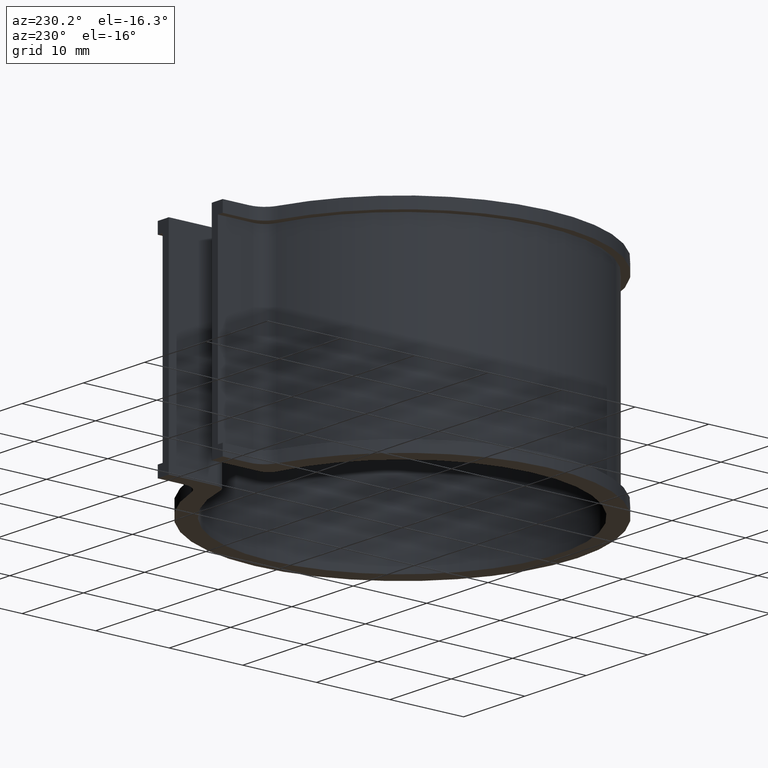
[diagram: clean part render]
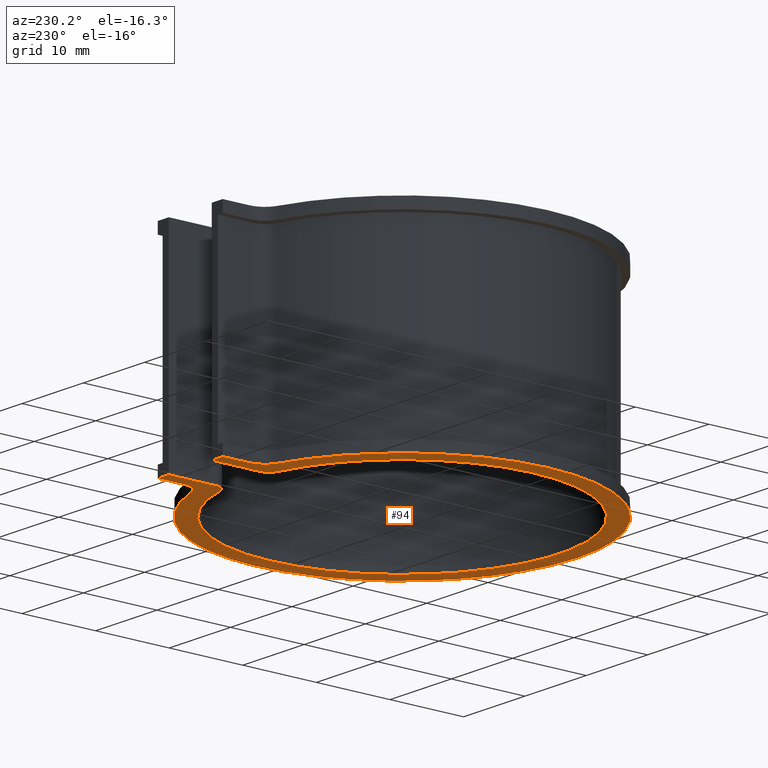
[diagram: same view with one face highlighted and labeled with its STEP entity id]
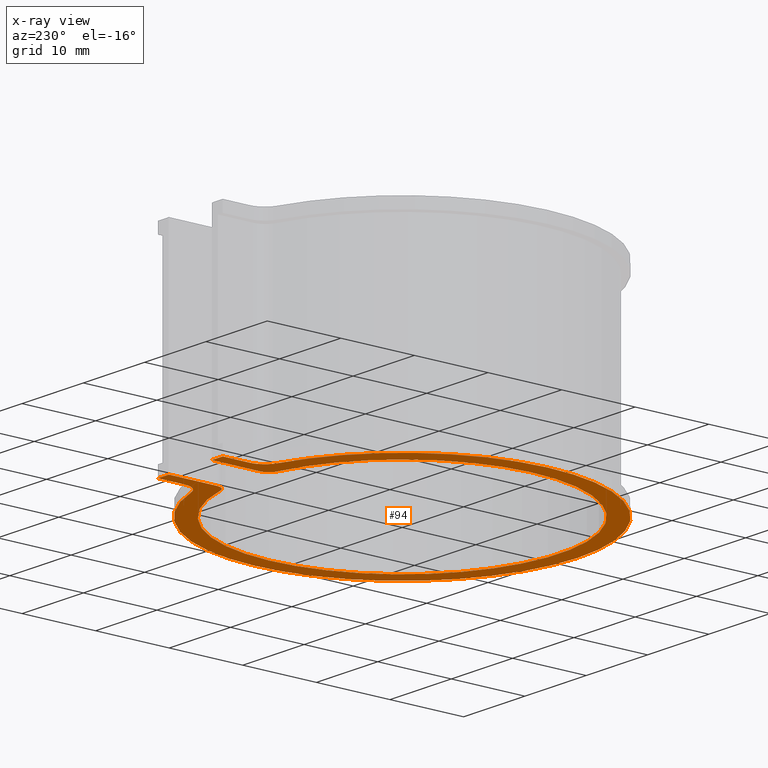
[diagram: x-ray of the same camera — body ghosted, the highlighted face saturated]
A machine part, auxiliary view. The second image highlights one B-rep face of the part: STEP entity #94.
The next image is the same camera in x-ray: the body ghosted, the highlighted face saturated — about 0% of this face is hidden behind the body in this view.
In plain terms, the highlighted planar face has unit normal (0, 0, 1).
Its self-contained STEP definition (entity closure, byte-faithful):
#94 = ADVANCED_FACE( '', ( #140 ), #141, .F. );
#140 = FACE_OUTER_BOUND( '', #192, .T. );
#141 = PLANE( '', #193 );
#192 = EDGE_LOOP( '', ( #367, #368, #369, #370, #371, #372, #373, #374, #375, #376, #377, #378 ) );
#193 = AXIS2_PLACEMENT_3D( '', #379, #380, #381 );
#367 = ORIENTED_EDGE( '', *, *, #493, .F. );
#368 = ORIENTED_EDGE( '', *, *, #484, .T. );
#369 = ORIENTED_EDGE( '', *, *, #428, .F. );
#370 = ORIENTED_EDGE( '', *, *, #494, .F. );
#371 = ORIENTED_EDGE( '', *, *, #495, .F. );
#372 = ORIENTED_EDGE( '', *, *, #474, .T. );
#373 = ORIENTED_EDGE( '', *, *, #496, .F. );
#374 = ORIENTED_EDGE( '', *, *, #469, .T. );
#375 = ORIENTED_EDGE( '', *, *, #497, .F. );
#376 = ORIENTED_EDGE( '', *, *, #437, .F. );
#377 = ORIENTED_EDGE( '', *, *, #498, .F. );
#378 = ORIENTED_EDGE( '', *, *, #480, .T. );
#379 = CARTESIAN_POINT( '', ( 0.000000000000000, 2.08166817117217E-014, -26.5000000000000 ) );
#380 = DIRECTION( '', ( 0.000000000000000, 0.000000000000000, 1.00000000000000 ) );
#381 = DIRECTION( '', ( 0.000000000000000, 1.00000000000000, 0.000000000000000 ) );
#428 = EDGE_CURVE( '', #500, #501, #502, .T. );
#437 = EDGE_CURVE( '', #517, #519, #520, .T. );
#469 = EDGE_CURVE( '', #574, #575, #576, .T. );
#474 = EDGE_CURVE( '', #582, #583, #584, .T. );
#480 = EDGE_CURVE( '', #592, #593, #594, .F. );
#484 = EDGE_CURVE( '', #600, #501, #601, .F. );
#493 = EDGE_CURVE( '', #600, #593, #612, .T. );
#494 = EDGE_CURVE( '', #613, #500, #614, .T. );
#495 = EDGE_CURVE( '', #582, #613, #615, .T. );
#496 = EDGE_CURVE( '', #574, #583, #616, .T. );
#497 = EDGE_CURVE( '', #519, #575, #617, .T. );
#498 = EDGE_CURVE( '', #592, #517, #618, .T. );
#500 = VERTEX_POINT( '', #620 );
#501 = VERTEX_POINT( '', #621 );
#502 = LINE( '', #622, #623 );
#517 = VERTEX_POINT( '', #645 );
#519 = VERTEX_POINT( '', #648 );
#520 = LINE( '', #649, #650 );
#574 = VERTEX_POINT( '', #723 );
#575 = VERTEX_POINT( '', #724 );
#576 = CIRCLE( '', #725, 2.50000000000000 );
#582 = VERTEX_POINT( '', #734 );
#583 = VERTEX_POINT( '', #735 );
#584 = CIRCLE( '', #736, 2.50000000000000 );
#592 = VERTEX_POINT( '', #748 );
#593 = VERTEX_POINT( '', #749 );
#594 = CIRCLE( '', #750, 1.50000000000000 );
#600 = VERTEX_POINT( '', #758 );
#601 = CIRCLE( '', #759, 1.50000000000000 );
#612 = CIRCLE( '', #775, 21.3500000000000 );
#613 = VERTEX_POINT( '', #776 );
#614 = LINE( '', #777, #778 );
#615 = LINE( '', #779, #780 );
#616 = CIRCLE( '', #781, 23.8500000000000 );
#617 = LINE( '', #782, #783 );
#618 = LINE( '', #784, #785 );
#620 = CARTESIAN_POINT( '', ( 3.50000000000003, 28.8025110199728, -26.5000000000000 ) );
#621 = CARTESIAN_POINT( '', ( 3.50000000000000, 22.2962440783196, -26.5000000000000 ) );
#622 = CARTESIAN_POINT( '', ( 3.50000000000000, 28.8025110199728, -26.5000000000000 ) );
#623 = VECTOR( '', #788, 1000.00000000000 );
#645 = CARTESIAN_POINT( '', ( -3.50000000000000, 28.8025110199728, -26.5000000000000 ) );
#648 = CARTESIAN_POINT( '', ( -5.30000000000001, 28.8025110199728, -26.5000000000000 ) );
#649 = CARTESIAN_POINT( '', ( -3.50000000000000, 28.8025110199728, -26.5000000000000 ) );
#650 = VECTOR( '', #797, 1000.00000000000 );
#723 = CARTESIAN_POINT( '', ( -7.05996204933587, 22.7811201625806, -26.5000000000000 ) );
#724 = CARTESIAN_POINT( '', ( -5.30000000000000, 25.1690782509015, -26.5000000000000 ) );
#725 = AXIS2_PLACEMENT_3D( '', #853, #854, #855 );
#734 = CARTESIAN_POINT( '', ( 5.30000000000000, 25.1690782509015, -26.5000000000000 ) );
#735 = CARTESIAN_POINT( '', ( 7.05996204933587, 22.7811201625806, -26.5000000000000 ) );
#736 = AXIS2_PLACEMENT_3D( '', #862, #863, #864 );
#748 = CARTESIAN_POINT( '', ( -3.50000000000000, 22.2962440783196, -26.5000000000000 ) );
#749 = CARTESIAN_POINT( '', ( -4.67177242888403, 20.8325956705524, -26.5000000000000 ) );
#750 = AXIS2_PLACEMENT_3D( '', #872, #873, #874 );
#758 = CARTESIAN_POINT( '', ( 4.67177242888403, 20.8325956705524, -26.5000000000000 ) );
#759 = AXIS2_PLACEMENT_3D( '', #880, #881, #882 );
#775 = AXIS2_PLACEMENT_3D( '', #897, #898, #899 );
#776 = CARTESIAN_POINT( '', ( 5.30000000000000, 28.8025110199728, -26.5000000000000 ) );
#777 = CARTESIAN_POINT( '', ( 5.30000000000003, 28.8025110199728, -26.5000000000000 ) );
#778 = VECTOR( '', #900, 1000.00000000000 );
#779 = CARTESIAN_POINT( '', ( 5.30000000000000, 23.2536556265891, -26.5000000000000 ) );
#780 = VECTOR( '', #901, 1000.00000000000 );
#781 = AXIS2_PLACEMENT_3D( '', #902, #903, #904 );
#782 = CARTESIAN_POINT( '', ( -5.30000000000000, 28.8025110199728, -26.5000000000000 ) );
#783 = VECTOR( '', #905, 1000.00000000000 );
#784 = CARTESIAN_POINT( '', ( -3.50000000000000, 21.0611609366626, -26.5000000000000 ) );
#785 = VECTOR( '', #906, 1000.00000000000 );
#788 = DIRECTION( '', ( -6.12303176911189E-017, -1.00000000000000, 0.000000000000000 ) );
#797 = DIRECTION( '', ( -1.00000000000000, 0.000000000000000, 0.000000000000000 ) );
#853 = CARTESIAN_POINT( '', ( -7.80000000000000, 25.1690782509015, -26.5000000000000 ) );
#854 = DIRECTION( '', ( 0.000000000000000, 0.000000000000000, 1.00000000000000 ) );
#855 = DIRECTION( '', ( 1.00000000000000, 0.000000000000000, 0.000000000000000 ) );
#862 = CARTESIAN_POINT( '', ( 7.80000000000001, 25.1690782509015, -26.5000000000000 ) );
#863 = DIRECTION( '', ( 0.000000000000000, 0.000000000000000, 1.00000000000000 ) );
#864 = DIRECTION( '', ( 1.00000000000000, 0.000000000000000, 0.000000000000000 ) );
#872 = CARTESIAN_POINT( '', ( -5.00000000000001, 22.2962440783196, -26.5000000000000 ) );
#873 = DIRECTION( '', ( 0.000000000000000, 0.000000000000000, 1.00000000000000 ) );
#874 = DIRECTION( '', ( 1.00000000000000, 0.000000000000000, 0.000000000000000 ) );
#880 = CARTESIAN_POINT( '', ( 5.00000000000001, 22.2962440783196, -26.5000000000000 ) );
#881 = DIRECTION( '', ( 0.000000000000000, 0.000000000000000, 1.00000000000000 ) );
#882 = DIRECTION( '', ( 1.00000000000000, 0.000000000000000, 0.000000000000000 ) );
#897 = CARTESIAN_POINT( '', ( 0.000000000000000, 2.08166817117217E-014, -26.5000000000000 ) );
#898 = DIRECTION( '', ( 0.000000000000000, 0.000000000000000, -1.00000000000000 ) );
#899 = DIRECTION( '', ( 1.00000000000000, 0.000000000000000, 0.000000000000000 ) );
#900 = DIRECTION( '', ( -1.00000000000000, 0.000000000000000, 0.000000000000000 ) );
#901 = DIRECTION( '', ( 6.12303176911189E-017, 1.00000000000000, 0.000000000000000 ) );
#902 = CARTESIAN_POINT( '', ( 0.000000000000000, 2.08166817117217E-014, -26.5000000000000 ) );
#903 = DIRECTION( '', ( 0.000000000000000, 0.000000000000000, 1.00000000000000 ) );
#904 = DIRECTION( '', ( 1.00000000000000, 0.000000000000000, 0.000000000000000 ) );
#905 = DIRECTION( '', ( -6.12303176911189E-017, -1.00000000000000, 0.000000000000000 ) );
#906 = DIRECTION( '', ( 6.12303176911189E-017, 1.00000000000000, 0.000000000000000 ) );